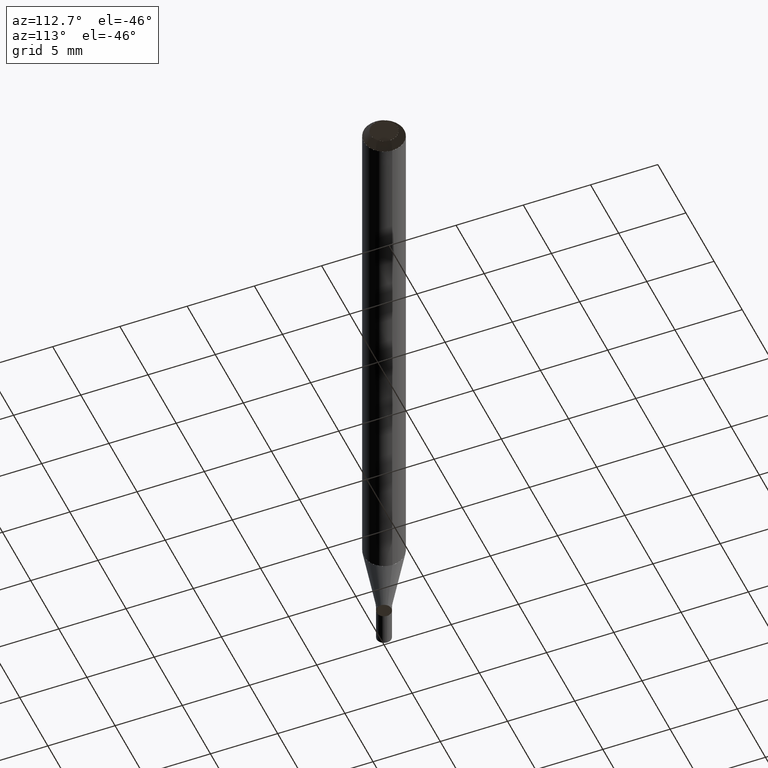
[diagram: clean part render]
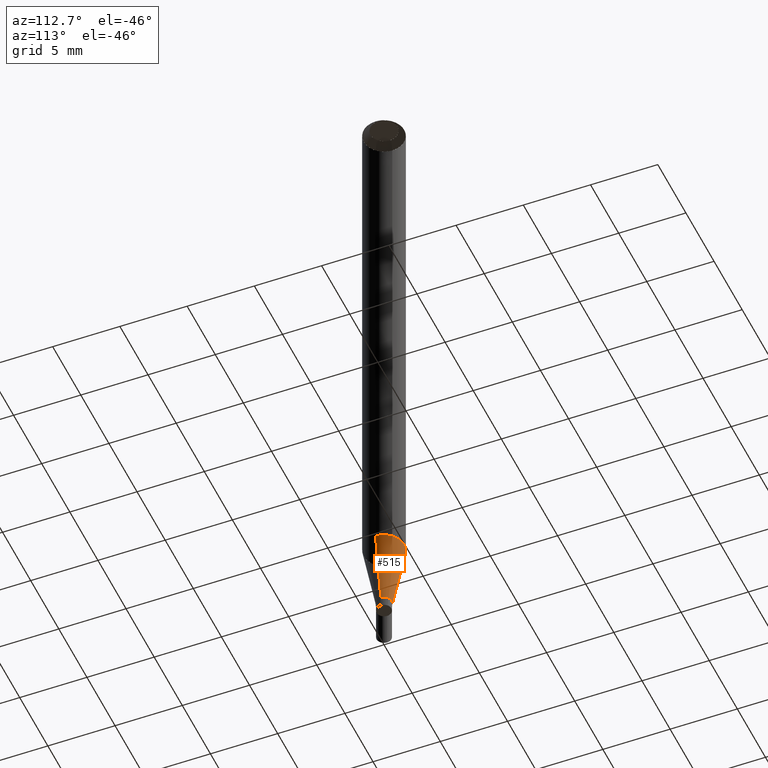
[diagram: same view with one face highlighted and labeled with its STEP entity id]
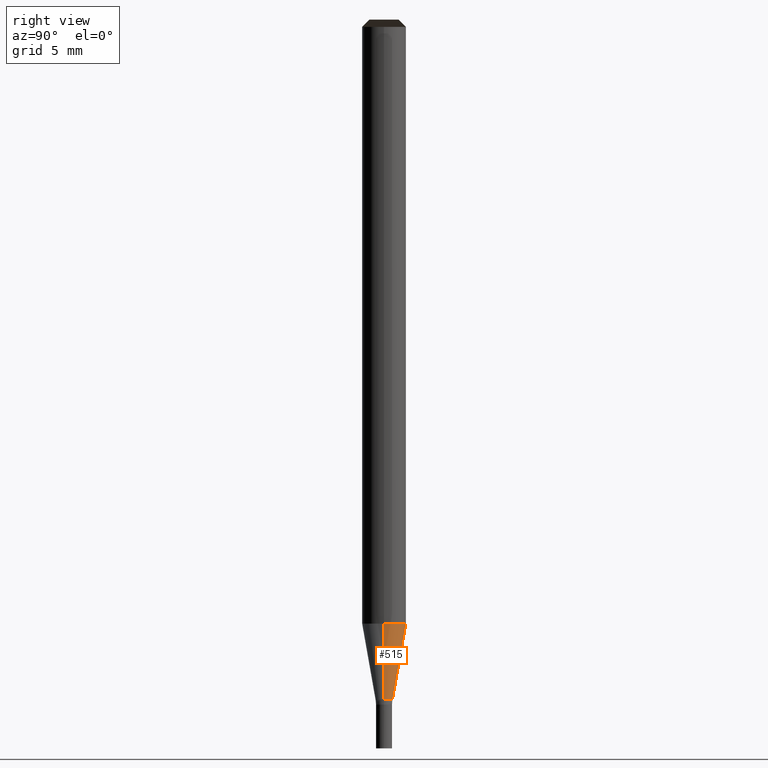
[diagram: same view with one face highlighted and labeled with its STEP entity id]
A machine part, auxiliary view. The second image highlights one B-rep face of the part: STEP entity #515.
A second angle (right view) of the same face is appended — the face is thin or edge-on in the first view.
In plain terms, the highlighted face is a freeform B-spline surface patch.
Its self-contained STEP definition (entity closure, byte-faithful):
#288=CARTESIAN_POINT('',(0.580384493976,0.0,-5.215398700355));
#289=CARTESIAN_POINT('',(0.580384493976,0.580384493976,-5.215398700355));
#290=CARTESIAN_POINT('',(0.0,0.580384493976,-5.215398700355));
#291=CARTESIAN_POINT('',(-0.580384493976,0.580384493976,-5.215398700355));
#292=CARTESIAN_POINT('',(-0.580384493976,0.0,-5.215398700355));
#293=CARTESIAN_POINT('',(1.5,0.0,-0.0));
#294=CARTESIAN_POINT('',(1.5,1.5,-0.0));
#295=CARTESIAN_POINT('',(0.0,1.5,-0.0));
#296=CARTESIAN_POINT('',(-1.5,1.5,-0.0));
#297=CARTESIAN_POINT('',(-1.5,0.0,-0.0));
#496=(
BOUNDED_SURFACE()
B_SPLINE_SURFACE(1,2,(
(#288,#289,#290,#291,#292),
(#293,#294,#295,#296,#297)
), .UNSPECIFIED.,.F.,.F.,.F.)
B_SPLINE_SURFACE_WITH_KNOTS((2,2),(3,2,3),(
0.0,1.0),(
0.0,0.5,1.0), .UNSPECIFIED.)
GEOMETRIC_REPRESENTATION_ITEM()
RATIONAL_B_SPLINE_SURFACE(((1.0,0.707106781187,1.0,0.707106781187,1.0),
(1.0,0.707106781187,1.0,0.707106781187,1.0)
))
REPRESENTATION_ITEM('')
SURFACE()
);
#497=(
BOUNDED_CURVE()
B_SPLINE_CURVE(2,(#292,#291,#290,#289,#288),.UNSPECIFIED.,.F.,.F.)
B_SPLINE_CURVE_WITH_KNOTS((3,2,3),
(0.0,0.5,1.0),.UNSPECIFIED.)
CURVE()
GEOMETRIC_REPRESENTATION_ITEM()
RATIONAL_B_SPLINE_CURVE((1.0,0.707106781187,1.0,0.707106781187,1.0))
REPRESENTATION_ITEM('')
);
#498=(
BOUNDED_CURVE()
B_SPLINE_CURVE(1,(#288,#293),.UNSPECIFIED.,.F.,.F.)
B_SPLINE_CURVE_WITH_KNOTS((2,2),
(0.0,1.0),.UNSPECIFIED.)
CURVE()
GEOMETRIC_REPRESENTATION_ITEM()
RATIONAL_B_SPLINE_CURVE((1.0,1.0))
REPRESENTATION_ITEM('')
);
#499=(
BOUNDED_CURVE()
B_SPLINE_CURVE(2,(#293,#294,#295,#296,#297),.UNSPECIFIED.,.F.,.F.)
B_SPLINE_CURVE_WITH_KNOTS((3,2,3),
(0.0,0.5,1.0),.UNSPECIFIED.)
CURVE()
GEOMETRIC_REPRESENTATION_ITEM()
RATIONAL_B_SPLINE_CURVE((1.0,0.707106781187,1.0,0.707106781187,1.0))
REPRESENTATION_ITEM('')
);
#500=(
BOUNDED_CURVE()
B_SPLINE_CURVE(1,(#297,#292),.UNSPECIFIED.,.F.,.F.)
B_SPLINE_CURVE_WITH_KNOTS((2,2),
(0.0,1.0),.UNSPECIFIED.)
CURVE()
GEOMETRIC_REPRESENTATION_ITEM()
RATIONAL_B_SPLINE_CURVE((1.0,1.0))
REPRESENTATION_ITEM('')
);
#501=VERTEX_POINT('',#288);
#502=VERTEX_POINT('',#292);
#503=VERTEX_POINT('',#293);
#504=VERTEX_POINT('',#297);
#505=EDGE_CURVE('',#502,#501,#497,.T.);
#506=EDGE_CURVE('',#501,#503,#498,.T.);
#507=EDGE_CURVE('',#503,#504,#499,.T.);
#508=EDGE_CURVE('',#504,#502,#500,.T.);
#509=ORIENTED_EDGE('',*,*,#505,.T.);
#510=ORIENTED_EDGE('',*,*,#506,.T.);
#511=ORIENTED_EDGE('',*,*,#507,.T.);
#512=ORIENTED_EDGE('',*,*,#508,.T.);
#513=EDGE_LOOP('',(#509,#510,#511,#512));
#514=FACE_OUTER_BOUND('',#513,.T.);
#515=ADVANCED_FACE('',(#514),#496,.T.);